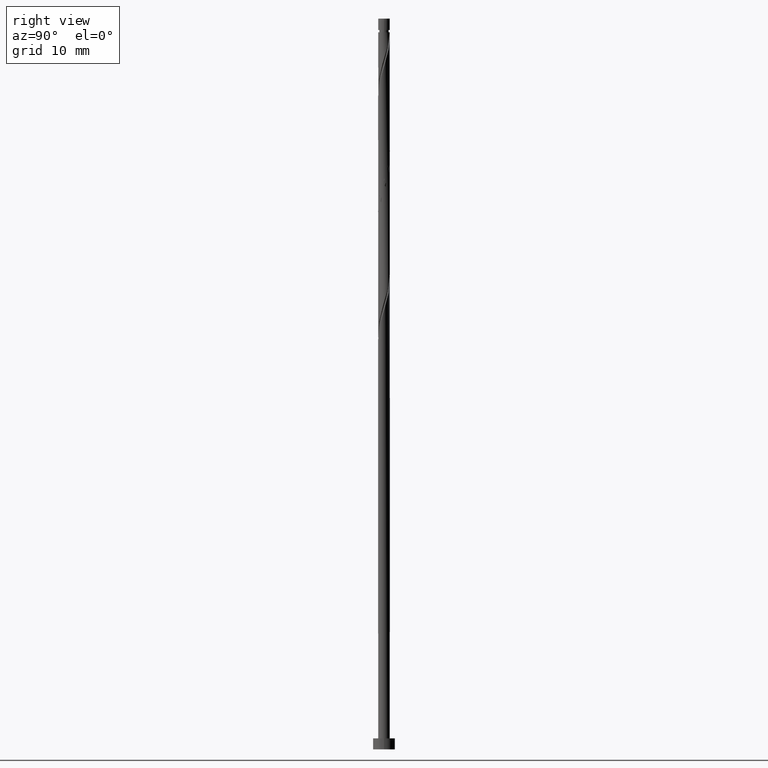
[diagram: clean part render]
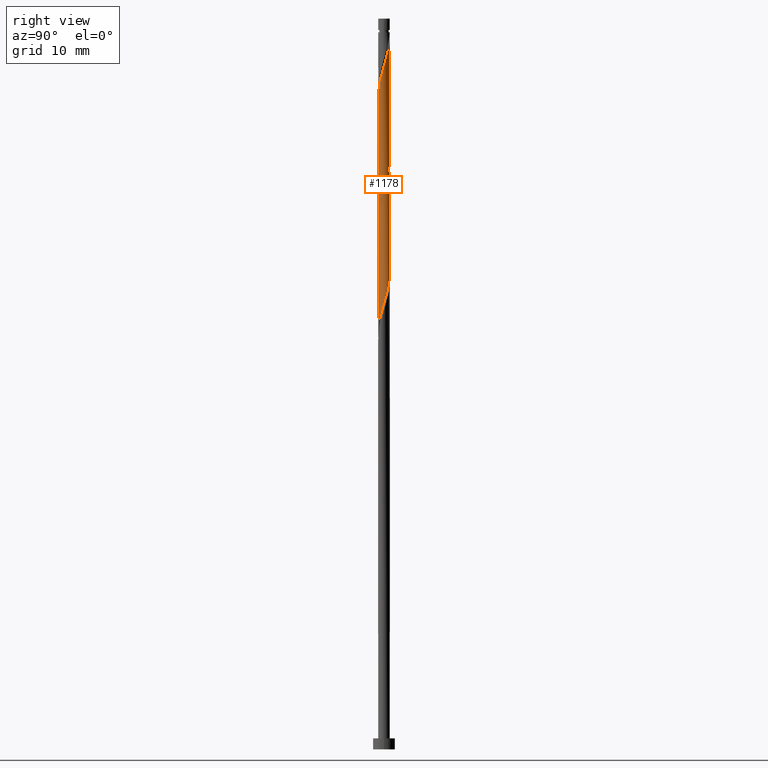
[diagram: same view with one face highlighted and labeled with its STEP entity id]
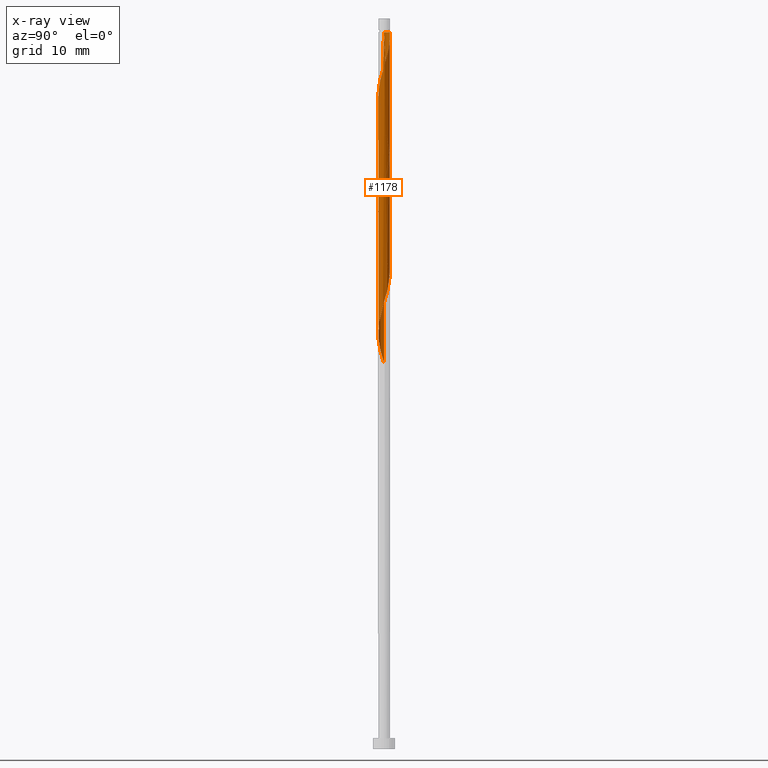
[diagram: x-ray of the same camera — body ghosted, the highlighted face saturated]
A machine part, right view. The second image highlights one B-rep face of the part: STEP entity #1178.
The next image is the same camera in x-ray: the body ghosted, the highlighted face saturated — about 0% of this face is hidden behind the body in this view.
In plain terms, the highlighted cylindrical surface (bore or boss wall) has radius 0.8 mm, axis along (-0, -0, -1).
Its self-contained STEP definition (entity closure, byte-faithful):
#3 = CARTESIAN_POINT ( 'NONE',  ( 0.7960944637184254047, 0.1616538755408087058, 93.96305618330671905 ) ) ;
#8 = CARTESIAN_POINT ( 'NONE',  ( -0.7960944637184254047, -0.1616538755408088168, 85.62972284997339045 ) ) ;
#9 = CARTESIAN_POINT ( 'NONE',  ( 0.5380435946977613071, 0.6086110916219009681, 80.07416729441780490 ) ) ;
#12 = CARTESIAN_POINT ( 'NONE',  ( -0.8000000000000013767, -7.525504397997678647E-16, 52.82724440496210860 ) ) ;
#19 = CARTESIAN_POINT ( 'NONE',  ( 0.8033729746863367271, 0.1203753886146050472, 61.55564877589927875 ) ) ;
#21 = CARTESIAN_POINT ( 'NONE',  ( -0.2580508690206642641, -0.7702649671627099792, 88.40750062775111928 ) ) ;
#26 = CARTESIAN_POINT ( 'NONE',  ( -0.8000000000000017097, -0.1304434974563647986, 53.25716391732774468 ) ) ;
#46 = VERTEX_POINT ( 'NONE', #936 ) ;
#53 = VERTEX_POINT ( 'NONE', #1353 ) ;
#64 = FACE_OUTER_BOUND ( 'NONE', #1361, .T. ) ;
#78 = CARTESIAN_POINT ( 'NONE',  ( -0.7444448375207638469, 0.2929195860448489674, 85.16675988701042854 ) ) ;
#102 = CARTESIAN_POINT ( 'NONE',  ( -0.7997337192023811214, 0.02063924346310168703, 69.42601914626966675 ) ) ;
#124 = CARTESIAN_POINT ( 'NONE',  ( -0.3819927504472527824, -0.7029093388238236706, 87.94453766478818579 ) ) ;
#129 = CARTESIAN_POINT ( 'NONE',  ( -0.1591979899370592200, -0.7840000000000014735, 56.46305618330668352 ) ) ;
#131 = CARTESIAN_POINT ( 'NONE',  ( 0.7444448375207640689, 0.2929195860448487454, 94.42601914626965254 ) ) ;
#144 = CARTESIAN_POINT ( 'NONE',  ( -0.7444448375207638469, 0.2929195860448489674, 68.50009322034374293 ) ) ;
#158 = EDGE_CURVE ( 'NONE', #688, #631, #946, .T. ) ;
#174 = EDGE_CURVE ( 'NONE', #377, #347, #1271, .T. ) ;
#193 = CARTESIAN_POINT ( 'NONE',  ( -0.8000000000000012657, 2.745035102991708959E-16, 86.16057773829547273 ) ) ;
#195 = CARTESIAN_POINT ( 'NONE',  ( 0.5993649215984714340, -0.5298695035169136425, 75.90750062775113349 ) ) ;
#200 = CARTESIAN_POINT ( 'NONE',  ( -0.1185466159795210139, 0.7911679340315849185, 82.38898210923265708 ) ) ;
#206 = CARTESIAN_POINT ( 'NONE',  ( -0.7585629115355307928, -0.2541304964830879420, 70.35194507219559057 ) ) ;
#238 = CARTESIAN_POINT ( 'NONE',  ( -0.1185466159795210139, 0.7911679340315849185, 65.72231544256595726 ) ) ;
#240 = CARTESIAN_POINT ( 'NONE',  ( 0.2974383428124957596, -0.7559290990995435333, 90.25935247960298113 ) ) ;
#250 = CARTESIAN_POINT ( 'NONE',  ( -0.6258982215412431938, -0.4982483479867357290, 54.61120433145485720 ) ) ;
#277 = ORIENTED_EDGE ( 'NONE', *, *, #1217, .T. ) ;
#279 = CIRCLE ( 'NONE', #1229, 0.7999999999999999334 ) ;
#285 = CARTESIAN_POINT ( 'NONE',  ( -0.1591979899370586371, 0.7839999999999986979, 98.12972284997331940 ) ) ;
#313 = CARTESIAN_POINT ( 'NONE',  ( -0.7137528483847245253, -0.3878856043515706009, 70.81490803515852406 ) ) ;
#315 = VECTOR ( 'NONE', #842, 1000.000000000000000 ) ;
#329 = CARTESIAN_POINT ( 'NONE',  ( -0.7997337192023812324, -0.02063924346310158642, 85.16675988701038591 ) ) ;
#330 = CARTESIAN_POINT ( 'NONE',  ( 0.8000000000000013767, 4.649753337720649979E-16, 77.82724440496211571 ) ) ;
#333 = CARTESIAN_POINT ( 'NONE',  ( 0.5380435946977613071, 0.6086110916219009681, 63.40750062775113349 ) ) ;
#335 = CARTESIAN_POINT ( 'NONE',  ( -0.8000000000000014877, -0.01032133946561395073, 85.13288533558362303 ) ) ;
#336 = CARTESIAN_POINT ( 'NONE',  ( 0.7585629115355306817, 0.2541304964830882751, 78.68527840552893338 ) ) ;
#347 = VERTEX_POINT ( 'NONE', #1273 ) ;
#356 = CARTESIAN_POINT ( 'NONE',  ( 0.7137528483847245253, 0.3878856043515704344, 62.48157470182520257 ) ) ;
#365 = CARTESIAN_POINT ( 'NONE',  ( 0.6258982215412431938, 0.4982483479867357290, 62.94453766478817869 ) ) ;
#377 = VERTEX_POINT ( 'NONE', #966 ) ;
#385 = DIRECTION ( 'NONE',  ( -0.000000000000000000, -0.000000000000000000, -1.000000000000000000 ) ) ;
#395 = ORIENTED_EDGE ( 'NONE', *, *, #158, .T. ) ;
#397 = EDGE_CURVE ( 'NONE', #688, #777, #811, .T. ) ;
#400 = CARTESIAN_POINT ( 'NONE',  ( -0.5059346318738409121, 0.6355537104849376950, 83.77787099812150018 ) ) ;
#403 = CARTESIAN_POINT ( 'NONE',  ( 0.6927952113231020670, -0.4241852965488894789, 76.37046359071408119 ) ) ;
#408 = CARTESIAN_POINT ( 'NONE',  ( -0.2580508690206643196, 0.7702649671627099792, 82.85194507219553373 ) ) ;
#416 = CARTESIAN_POINT ( 'NONE',  ( -0.2974383428124960926, -0.7559290990995430892, 72.66675988701037170 ) ) ;
#419 = CARTESIAN_POINT ( 'NONE',  ( -0.8000000000000000444, 0.000000000000000000, 100.0000000000000000 ) ) ;
#426 = CARTESIAN_POINT ( 'NONE',  ( -0.7997337192023811214, 0.02063924346310168703, 86.09268581293635236 ) ) ;
#429 = CARTESIAN_POINT ( 'NONE',  ( -0.5993649215984715450, -0.5298695035169131984, 87.01861173886226197 ) ) ;
#434 = CARTESIAN_POINT ( 'NONE',  ( 0.3819927504472525603, -0.7029093388238237816, 58.31490803515854537 ) ) ;
#436 = CARTESIAN_POINT ( 'NONE',  ( -0.8000000000000014877, -1.792675985627239927E-16, 85.09886796165127976 ) ) ;
#441 = CARTESIAN_POINT ( 'NONE',  ( -0.7137528483847245253, -0.3878856043515706009, 54.14824136849186687 ) ) ;
#443 = CARTESIAN_POINT ( 'NONE',  ( 0.5380435946977609740, -0.6086110916219013012, 91.18527840552890495 ) ) ;
#449 = CARTESIAN_POINT ( 'NONE',  ( 0.2580508690206648192, 0.7702649671627098682, 96.74083396108450472 ) ) ;
#455 = CARTESIAN_POINT ( 'NONE',  ( 0.2974383428124958706, 0.7559290990995430892, 64.33342655367704310 ) ) ;
#498 = VECTOR ( 'NONE', #1076, 1000.000000000000000 ) ;
#501 = CARTESIAN_POINT ( 'NONE',  ( -0.6927952113231021780, 0.4241852965488891458, 84.70379692404743821 ) ) ;
#525 = CARTESIAN_POINT ( 'NONE',  ( -0.7960944637184254047, 0.1616538755408088723, 68.96305618330670484 ) ) ;
#535 = CARTESIAN_POINT ( 'NONE',  ( 0.7997337192023811214, 0.02063924346310166621, 93.50009322034372872 ) ) ;
#546 = CARTESIAN_POINT ( 'NONE',  ( 0.1185466159795209723, -0.7911679340315849185, 57.38898210923261445 ) ) ;
#548 = CARTESIAN_POINT ( 'NONE',  ( -0.6927952113231021780, -0.4241852965488889793, 86.55564877589930006 ) ) ;
#553 = CARTESIAN_POINT ( 'NONE',  ( -0.2974383428124960926, -0.7559290990995430892, 56.00009322034372161 ) ) ;
#555 = CARTESIAN_POINT ( 'NONE',  ( 0.3819927504472529489, 0.7029093388238235596, 96.27787099812151439 ) ) ;
#571 = CARTESIAN_POINT ( 'NONE',  ( -0.6927952113231021780, 0.4241852965488891458, 68.03713025738076681 ) ) ;
#582 = ORIENTED_EDGE ( 'NONE', *, *, #1013, .T. ) ;
#594 = ORIENTED_EDGE ( 'NONE', *, *, #599, .F. ) ;
#599 = EDGE_CURVE ( 'NONE', #347, #631, #714, .T. ) ;
#616 = CARTESIAN_POINT ( 'NONE',  ( -0.3819927504472525603, 0.7029093388238237816, 83.31490803515853827 ) ) ;
#619 = CARTESIAN_POINT ( 'NONE',  ( 0.2580508690206641531, -0.7702649671627099792, 74.51861173886226197 ) ) ;
#624 = CARTESIAN_POINT ( 'NONE',  ( 0.5059346318738408010, -0.6355537104849379171, 75.44453766478817158 ) ) ;
#630 = CARTESIAN_POINT ( 'NONE',  ( -0.8033729746863367271, -0.1203753886146055468, 69.88898210923261445 ) ) ;
#631 = VERTEX_POINT ( 'NONE', #12 ) ;
#634 = CARTESIAN_POINT ( 'NONE',  ( 0.4177409687551283946, -0.6822700953607219176, 90.72231544256594304 ) ) ;
#645 = CARTESIAN_POINT ( 'NONE',  ( 0.7444448375207639579, -0.2929195860448488564, 76.83342655367707152 ) ) ;
#654 = CARTESIAN_POINT ( 'NONE',  ( 0.7137528483847245253, 0.3878856043515704344, 79.14824136849188108 ) ) ;
#659 = CARTESIAN_POINT ( 'NONE',  ( 0.5993649215984714340, -0.5298695035169136425, 59.24083396108448341 ) ) ;
#674 = CARTESIAN_POINT ( 'NONE',  ( -0.8000000000000013767, -7.525504397997677661E-16, 52.82724440496210150 ) ) ;
#682 = AXIS2_PLACEMENT_3D ( 'NONE', #1327, #385, #803 ) ;
#688 = VERTEX_POINT ( 'NONE', #889 ) ;
#693 = DIRECTION ( 'NONE',  ( -0.000000000000000000, -0.000000000000000000, -1.000000000000000000 ) ) ;
#714 =( BOUNDED_CURVE ( )  B_SPLINE_CURVE ( 2, ( #851, #829, #1268, #746, #645, #403, #195, #624, #1363, #619, #1250, #1151, #728, #416, #1146, #838, #1257, #313, #206, #630, #102, #525, #144, #571, #1276, #1204, #872, #761, #238, #1195, #1180, #455, #880, #333, #365, #356, #1290, #19, #963, #1301, #772, #1308, #659, #978, #434, #780, #546, #858, #129, #553, #970, #1100, #250, #441, #1282, #26, #674 ),
 .UNSPECIFIED., .F., .T. ) 
 B_SPLINE_CURVE_WITH_KNOTS ( ( 3, 2, 2, 2, 2, 2, 2, 2, 2, 2, 2, 2, 2, 2, 2, 2, 2, 2, 2, 2, 2, 2, 2, 2, 2, 2, 2, 2, 3 ),
 ( 0.5545248053855289516, 0.5555555555555555802, 0.5694444444444444198, 0.5833333333333333703, 0.5972222222222222099, 0.6111111111111111605, 0.6250000000000000000, 0.6388888888888888395, 0.6527777777777777901, 0.6666666666666666297, 0.6805555555555555802, 0.6944444444444444198, 0.7083333333333333703, 0.7222222222222222099, 0.7361111111111111605, 0.7500000000000000000, 0.7638888888888888395, 0.7777777777777777901, 0.7916666666666666297, 0.8055555555555555802, 0.8194444444444444198, 0.8333333333333333703, 0.8472222222222222099, 0.8611111111111111605, 0.8750000000000000000, 0.8888888888888888395, 0.9027777777777777901, 0.9166666666666665186, 0.9295248053855291737 ),
 .UNSPECIFIED. ) 
 CURVE ( )  GEOMETRIC_REPRESENTATION_ITEM ( )  RATIONAL_B_SPLINE_CURVE ( ( 0.9071930855141286942, 0.9080659294509764168, 0.9090909090909166101, 0.8952797754656511842, 0.9090909090909166101, 0.8952797754656511842, 0.9090909090909166101, 0.8952797754656511842, 0.9090909090909166101, 0.8952797754656511842, 0.9090909090909166101, 0.8952797754656511842, 0.9090909090909166101, 0.8952797754656511842, 0.9090909090909166101, 0.8952797754656511842, 0.9090909090909166101, 0.8952797754656511842, 0.9090909090909166101, 0.8952797754656511842, 0.9090909090909166101, 0.8952797754656511842, 0.9090909090909166101, 0.8952797754656511842, 0.9090909090909166101, 0.8952797754656511842, 0.9090909090909166101, 0.8952797754656511842, 0.9090909090909166101, 0.8952797754656511842, 0.9090909090909166101, 0.8952797754656511842, 0.9090909090909166101, 0.8952797754656511842, 0.9090909090909166101, 0.8952797754656511842, 0.9090909090909166101, 0.8952797754656511842, 0.9090909090909166101, 0.8952797754656511842, 0.9090909090909166101, 0.8952797754656511842, 0.9090909090909166101, 0.8952797754656511842, 0.9090909090909166101, 0.8952797754656511842, 0.9090909090909166101, 0.8952797754656511842, 0.9090909090909166101, 0.8952797754656511842, 0.9090909090909166101, 0.8952797754656511842, 0.9090909090909166101, 0.8952797754656511842, 0.9090909090909166101, 0.8963047551055911555, 0.9071930855141290273 ) ) 
 REPRESENTATION_ITEM ( '' )  );
#728 = CARTESIAN_POINT ( 'NONE',  ( -0.1591979899370592200, -0.7840000000000014735, 73.12972284997334782 ) ) ;
#742 = VECTOR ( 'NONE', #1274, 1000.000000000000000 ) ;
#743 = CARTESIAN_POINT ( 'NONE',  ( 0.5059346318738409121, 0.6355537104849376950, 95.81490803515858090 ) ) ;
#746 = CARTESIAN_POINT ( 'NONE',  ( 0.7960944637184254047, -0.1616538755408090111, 77.29638951664003343 ) ) ;
#749 = CARTESIAN_POINT ( 'NONE',  ( 0.1591979899370590257, -0.7840000000000012514, 89.79638951664006186 ) ) ;
#761 = CARTESIAN_POINT ( 'NONE',  ( -0.2580508690206643196, 0.7702649671627099792, 66.18527840552890495 ) ) ;
#772 = CARTESIAN_POINT ( 'NONE',  ( 0.7444448375207639579, -0.2929195860448488564, 60.16675988701039302 ) ) ;
#775 = CARTESIAN_POINT ( 'NONE',  ( 0.6258982215412431938, 0.4982483479867357290, 79.61120433145484299 ) ) ;
#777 = VERTEX_POINT ( 'NONE', #285 ) ;
#780 = CARTESIAN_POINT ( 'NONE',  ( 0.2580508690206641531, -0.7702649671627099792, 57.85194507219557636 ) ) ;
#803 = DIRECTION ( 'NONE',  ( -1.000000000000000000, 0.000000000000000000, 0.000000000000000000 ) ) ;
#809 = DIRECTION ( 'NONE',  ( -1.000000000000000000, 0.000000000000000000, 0.000000000000000000 ) ) ;
#811 =( BOUNDED_CURVE ( )  B_SPLINE_CURVE ( 2, ( #436, #335, #329, #8, #1073, #548, #429, #1059, #124, #21, #874, #854, #749, #240, #634, #443, #951, #865, #1166, #1285, #535, #3, #131, #959, #1183, #743, #555, #449, #848, #1294, #1154 ),
 .UNSPECIFIED., .F., .T. ) 
 B_SPLINE_CURVE_WITH_KNOTS ( ( 3, 2, 2, 2, 2, 2, 2, 2, 2, 2, 2, 2, 2, 2, 2, 3 ),
 ( 0.5545248053855288406, 0.5555555555555555802, 0.5694444444444444198, 0.5833333333333332593, 0.5972222222222223209, 0.6111111111111112715, 0.6250000000000001110, 0.6388888888888889506, 0.6527777777777779011, 0.6666666666666669627, 0.6805555555555558023, 0.6944444444444446418, 0.7083333333333334814, 0.7222222222222225430, 0.7361111111111114935, 0.7500000000000003331 ),
 .UNSPECIFIED. ) 
 CURVE ( )  GEOMETRIC_REPRESENTATION_ITEM ( )  RATIONAL_B_SPLINE_CURVE ( ( 0.9071930855141278061, 0.9080659294509756396, 0.9090909090909159440, 0.8952797754656505180, 0.9090909090909159440, 0.8952797754656505180, 0.9090909090909159440, 0.8952797754656505180, 0.9090909090909159440, 0.8952797754656505180, 0.9090909090909159440, 0.8952797754656505180, 0.9090909090909159440, 0.8952797754656505180, 0.9090909090909159440, 0.8952797754656505180, 0.9090909090909159440, 0.8952797754656505180, 0.9090909090909159440, 0.8952797754656505180, 0.9090909090909159440, 0.8952797754656505180, 0.9090909090909159440, 0.8952797754656505180, 0.9090909090909159440, 0.8952797754656505180, 0.9090909090909159440, 0.8952797754656505180, 0.9090909090909159440, 0.8952797754656501850, 0.9090909090909162771 ) ) 
 REPRESENTATION_ITEM ( '' )  );
#821 = ORIENTED_EDGE ( 'NONE', *, *, #397, .F. ) ;
#826 = ORIENTED_EDGE ( 'NONE', *, *, #956, .F. ) ;
#829 = CARTESIAN_POINT ( 'NONE',  ( 0.8000000000000013767, -0.01032133946561551371, 77.79322703102975822 ) ) ;
#838 = CARTESIAN_POINT ( 'NONE',  ( -0.5380435946977609740, -0.6086110916219013012, 71.74083396108443367 ) ) ;
#842 = DIRECTION ( 'NONE',  ( -0.000000000000000000, -0.000000000000000000, -1.000000000000000000 ) ) ;
#848 = CARTESIAN_POINT ( 'NONE',  ( 0.1185466159795215968, 0.7911679340315846964, 97.20379692404742400 ) ) ;
#851 = CARTESIAN_POINT ( 'NONE',  ( 0.8000000000000013767, 4.649753337720649979E-16, 77.82724440496211571 ) ) ;
#854 = CARTESIAN_POINT ( 'NONE',  ( 0.02095763706162204199, -0.8120709009004596357, 89.33342655367707152 ) ) ;
#858 = CARTESIAN_POINT ( 'NONE',  ( -0.02095763706162261097, -0.8120709009004595247, 56.92601914626965964 ) ) ;
#860 = CARTESIAN_POINT ( 'NONE',  ( 0.1591979899370593032, 0.7840000000000014735, 81.46305618330670484 ) ) ;
#865 = CARTESIAN_POINT ( 'NONE',  ( 0.7137528483847243033, -0.3878856043515707674, 92.11120433145484299 ) ) ;
#872 = CARTESIAN_POINT ( 'NONE',  ( -0.3819927504472525603, 0.7029093388238237816, 66.64824136849188108 ) ) ;
#874 = CARTESIAN_POINT ( 'NONE',  ( -0.1185466159795211943, -0.7911679340315848075, 88.87046359071412382 ) ) ;
#875 = CARTESIAN_POINT ( 'NONE',  ( 0.2974383428124958706, 0.7559290990995430892, 81.00009322034371451 ) ) ;
#878 = LINE ( 'NONE', #1192, #742 ) ;
#880 = CARTESIAN_POINT ( 'NONE',  ( 0.4177409687551290607, 0.6822700953607219176, 63.87046359071410251 ) ) ;
#886 = LINE ( 'NONE', #1306, #498 ) ;
#889 = CARTESIAN_POINT ( 'NONE',  ( -0.8000000000000015987, -1.792675985627239681E-16, 85.09886796165127976 ) ) ;
#936 = CARTESIAN_POINT ( 'NONE',  ( 0.8000000000000000444, 9.797174393178826150E-17, 98.12972284997336203 ) ) ;
#946 = LINE ( 'NONE', #419, #315 ) ;
#951 = CARTESIAN_POINT ( 'NONE',  ( 0.6258982215412428607, -0.4982483479867358400, 91.64824136849186687 ) ) ;
#956 = EDGE_CURVE ( 'NONE', #53, #377, #878, .T. ) ;
#959 = CARTESIAN_POINT ( 'NONE',  ( 0.6927952113231024001, 0.4241852965488885907, 94.88898210923264287 ) ) ;
#963 = CARTESIAN_POINT ( 'NONE',  ( 0.7997337192023811214, -0.02063924346310194724, 61.09268581293633105 ) ) ;
#966 = CARTESIAN_POINT ( 'NONE',  ( -0.8000000000000012657, 2.745035102991708959E-16, 86.16057773829547273 ) ) ;
#970 = CARTESIAN_POINT ( 'NONE',  ( -0.4177409687551287276, -0.6822700953607221397, 55.53713025738076681 ) ) ;
#978 = CARTESIAN_POINT ( 'NONE',  ( 0.5059346318738408010, -0.6355537104849379171, 58.77787099812150018 ) ) ;
#988 = CARTESIAN_POINT ( 'NONE',  ( 0.8000000000000007105, 0.1304434974563665195, 78.25716391732773047 ) ) ;
#1011 = ORIENTED_EDGE ( 'NONE', *, *, #174, .F. ) ;
#1013 = EDGE_CURVE ( 'NONE', #46, #347, #886, .T. ) ;
#1028 = CARTESIAN_POINT ( 'NONE',  ( -0.7960944637184254047, 0.1616538755408088723, 85.62972284997336203 ) ) ;
#1055 = CARTESIAN_POINT ( 'NONE',  ( -0.8000000000000013767, 0.01032133946561518585, 86.12656036436311524 ) ) ;
#1059 = CARTESIAN_POINT ( 'NONE',  ( -0.5059346318738409121, -0.6355537104849376950, 87.48157470182519546 ) ) ;
#1073 = CARTESIAN_POINT ( 'NONE',  ( -0.7444448375207640689, -0.2929195860448488564, 86.09268581293632394 ) ) ;
#1076 = DIRECTION ( 'NONE',  ( -0.000000000000000000, -0.000000000000000000, -1.000000000000000000 ) ) ;
#1080 = CARTESIAN_POINT ( 'NONE',  ( 0.4177409687551290607, 0.6822700953607219176, 80.53713025738076681 ) ) ;
#1100 = CARTESIAN_POINT ( 'NONE',  ( -0.5380435946977609740, -0.6086110916219013012, 55.07416729441777647 ) ) ;
#1144 = CARTESIAN_POINT ( 'NONE',  ( -0.5993649215984715450, 0.5298695035169133094, 84.24083396108447630 ) ) ;
#1146 = CARTESIAN_POINT ( 'NONE',  ( -0.4177409687551287276, -0.6822700953607221397, 72.20379692404746663 ) ) ;
#1151 = CARTESIAN_POINT ( 'NONE',  ( -0.02095763706162261097, -0.8120709009004595247, 73.59268581293630973 ) ) ;
#1154 = CARTESIAN_POINT ( 'NONE',  ( -0.1591979899370586371, 0.7839999999999986979, 98.12972284997331940 ) ) ;
#1166 = CARTESIAN_POINT ( 'NONE',  ( 0.7585629115355304597, -0.2541304964830884416, 92.57416729441781911 ) ) ;
#1178 = ADVANCED_FACE ( 'NONE', ( #64 ), #1221, .T. ) ;
#1180 = CARTESIAN_POINT ( 'NONE',  ( 0.1591979899370593032, 0.7840000000000014735, 64.79638951664001922 ) ) ;
#1183 = CARTESIAN_POINT ( 'NONE',  ( 0.5993649215984715450, 0.5298695035169133094, 95.35194507219557636 ) ) ;
#1192 = CARTESIAN_POINT ( 'NONE',  ( -0.8000000000000000444, 0.000000000000000000, 100.0000000000000000 ) ) ;
#1193 = ORIENTED_EDGE ( 'NONE', *, *, #1013, .F. ) ;
#1195 = CARTESIAN_POINT ( 'NONE',  ( 0.02095763706162231607, 0.8120709009004595247, 65.25935247960299534 ) ) ;
#1204 = CARTESIAN_POINT ( 'NONE',  ( -0.5059346318738409121, 0.6355537104849376950, 67.11120433145482878 ) ) ;
#1210 = CARTESIAN_POINT ( 'NONE',  ( 0.000000000000000000, 0.000000000000000000, 98.12972284997336203 ) ) ;
#1217 = EDGE_CURVE ( 'NONE', #53, #777, #279, .T. ) ;
#1221 = CYLINDRICAL_SURFACE ( 'NONE', #682, 0.8000000000000000444 ) ;
#1229 = AXIS2_PLACEMENT_3D ( 'NONE', #1210, #693, #809 ) ;
#1250 = CARTESIAN_POINT ( 'NONE',  ( 0.1185466159795209723, -0.7911679340315849185, 74.05564877589928585 ) ) ;
#1257 = CARTESIAN_POINT ( 'NONE',  ( -0.6258982215412431938, -0.4982483479867357290, 71.27787099812154281 ) ) ;
#1268 = CARTESIAN_POINT ( 'NONE',  ( 0.7997337192023811214, -0.02063924346310194724, 77.75935247960298113 ) ) ;
#1271 =( BOUNDED_CURVE ( )  B_SPLINE_CURVE ( 2, ( #193, #1055, #426, #1028, #78, #501, #1144, #400, #616, #408, #200, #1304, #860, #875, #1080, #9, #775, #654, #336, #988, #330 ),
 .UNSPECIFIED., .F., .T. ) 
 B_SPLINE_CURVE_WITH_KNOTS ( ( 3, 2, 2, 2, 2, 2, 2, 2, 2, 2, 3 ),
 ( 0.4295248053855289516, 0.4305555555555555802, 0.4444444444444444198, 0.4583333333333333148, 0.4722222222222222099, 0.4861111111111111049, 0.5000000000000000000, 0.5138888888888888395, 0.5277777777777777901, 0.5416666666666666297, 0.5545248053855289516 ),
 .UNSPECIFIED. ) 
 CURVE ( )  GEOMETRIC_REPRESENTATION_ITEM ( )  RATIONAL_B_SPLINE_CURVE ( ( 0.9071930855141286942, 0.9080659294509764168, 0.9090909090909166101, 0.8952797754656511842, 0.9090909090909166101, 0.8952797754656511842, 0.9090909090909166101, 0.8952797754656511842, 0.9090909090909166101, 0.8952797754656511842, 0.9090909090909166101, 0.8952797754656511842, 0.9090909090909166101, 0.8952797754656511842, 0.9090909090909166101, 0.8952797754656511842, 0.9090909090909166101, 0.8952797754656511842, 0.9090909090909166101, 0.8963047551055913775, 0.9071930855141286942 ) ) 
 REPRESENTATION_ITEM ( '' )  );
#1273 = CARTESIAN_POINT ( 'NONE',  ( 0.8000000000000013767, 4.649753337720649979E-16, 77.82724440496210150 ) ) ;
#1274 = DIRECTION ( 'NONE',  ( -0.000000000000000000, -0.000000000000000000, -1.000000000000000000 ) ) ;
#1276 = CARTESIAN_POINT ( 'NONE',  ( -0.5993649215984715450, 0.5298695035169133094, 67.57416729441781911 ) ) ;
#1282 = CARTESIAN_POINT ( 'NONE',  ( -0.7585629115355307928, -0.2541304964830879420, 53.68527840552892627 ) ) ;
#1285 = CARTESIAN_POINT ( 'NONE',  ( 0.8033729746863369492, -0.1203753886146061020, 93.03713025738075260 ) ) ;
#1290 = CARTESIAN_POINT ( 'NONE',  ( 0.7585629115355306817, 0.2541304964830882751, 62.01861173886224776 ) ) ;
#1294 = CARTESIAN_POINT ( 'NONE',  ( -0.02095763706162568143, 0.8120709009004601908, 97.66675988701042854 ) ) ;
#1301 = CARTESIAN_POINT ( 'NONE',  ( 0.7960944637184254047, -0.1616538755408090111, 60.62972284997335493 ) ) ;
#1304 = CARTESIAN_POINT ( 'NONE',  ( 0.02095763706162231607, 0.8120709009004595247, 81.92601914626962412 ) ) ;
#1306 = CARTESIAN_POINT ( 'NONE',  ( 0.8000000000000000444, 9.797174393178826150E-17, 100.0000000000000000 ) ) ;
#1308 = CARTESIAN_POINT ( 'NONE',  ( 0.6927952113231020670, -0.4241852965488894789, 59.70379692404741689 ) ) ;
#1327 = CARTESIAN_POINT ( 'NONE',  ( 0.000000000000000000, 0.000000000000000000, 100.0000000000000000 ) ) ;
#1353 = CARTESIAN_POINT ( 'NONE',  ( -0.7999999999999999334, 0.000000000000000000, 98.12972284997336203 ) ) ;
#1361 = EDGE_LOOP ( 'NONE', ( #826, #277, #821, #395, #594, #1193, #582, #1011 ) ) ;
#1363 = CARTESIAN_POINT ( 'NONE',  ( 0.3819927504472525603, -0.7029093388238237816, 74.98157470182520967 ) ) ;